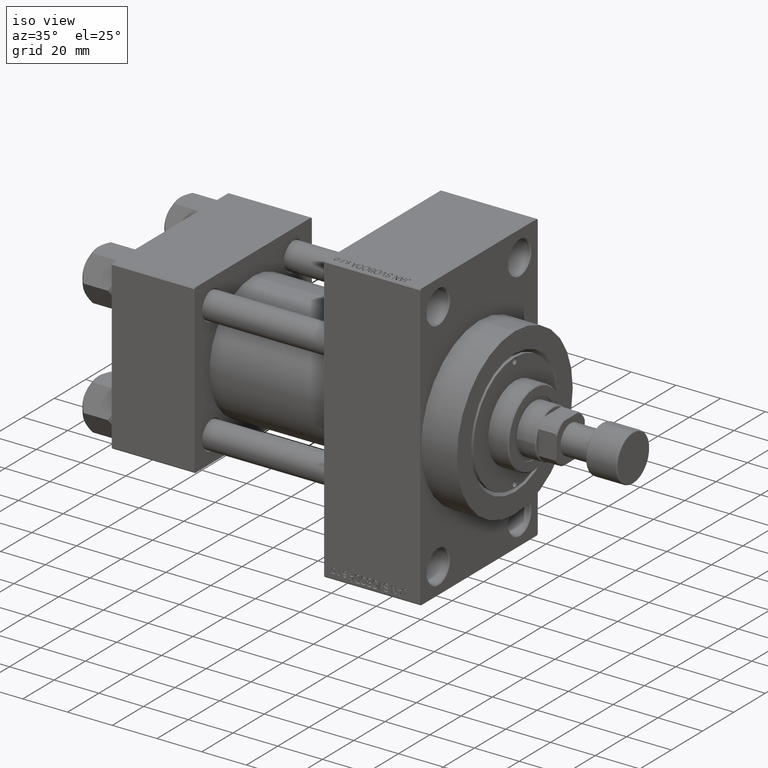
[diagram: clean part render]
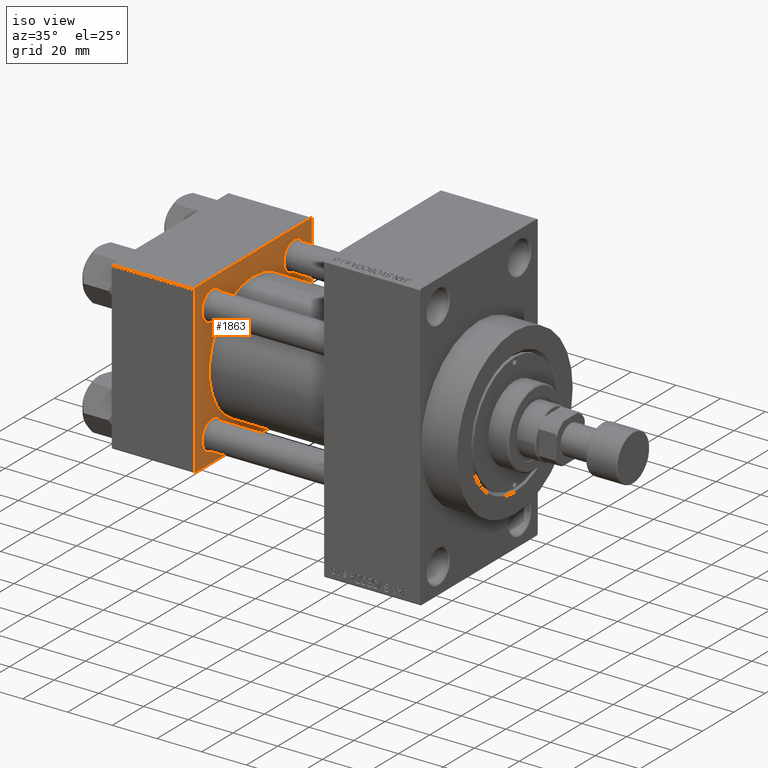
[diagram: same view with one face highlighted and labeled with its STEP entity id]
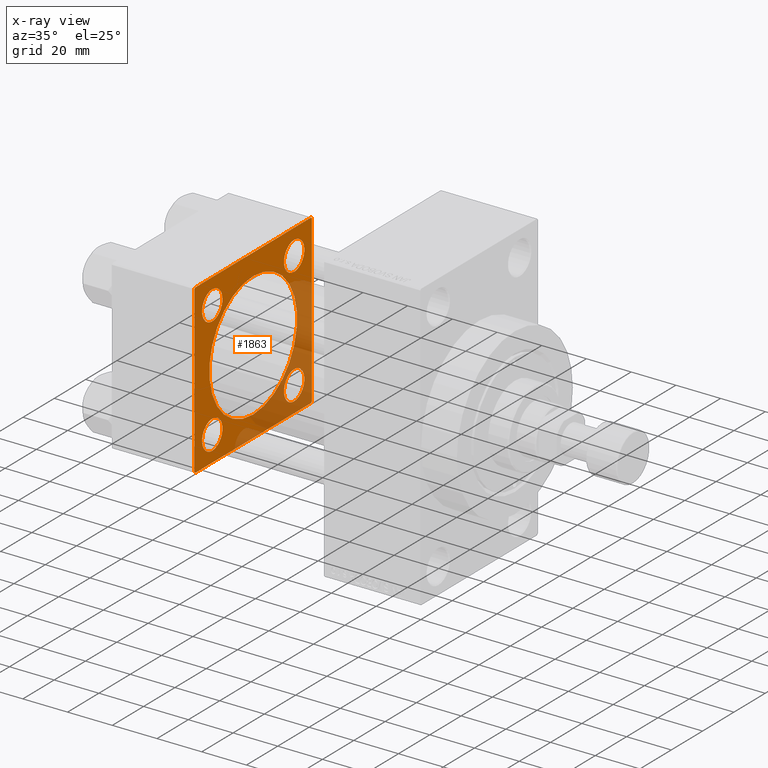
[diagram: x-ray of the same camera — body ghosted, the highlighted face saturated]
A machine part, iso view. The second image highlights one B-rep face of the part: STEP entity #1863.
The next image is the same camera in x-ray: the body ghosted, the highlighted face saturated — about 32% of this face is hidden behind the body in this view.
In plain terms, the highlighted planar face has unit normal (-1, 0, 0).
Its self-contained STEP definition (entity closure, byte-faithful):
#30 = CARTESIAN_POINT ( 'NONE',  ( 37.00000000000000000, 36.99999999999999289, 37.50000000000000000 ) ) ;
#198 = VERTEX_POINT ( 'NONE', #13302 ) ;
#378 = EDGE_LOOP ( 'NONE', ( #18790, #35655, #4514, #42537, #27833, #1516, #10789, #2093 ) ) ;
#387 = LINE ( 'NONE', #7619, #15980 ) ;
#909 = CARTESIAN_POINT ( 'NONE',  ( 37.00000000000000000, 26.14999999999999858, 26.15000000000000213 ) ) ;
#1403 = CIRCLE ( 'NONE', #12979, 6.500000000000002665 ) ;
#1516 = ORIENTED_EDGE ( 'NONE', *, *, #40677, .T. ) ;
#1804 = DIRECTION ( 'NONE',  ( -1.000000000000000000, 0.000000000000000000, -0.000000000000000000 ) ) ;
#1863 = ADVANCED_FACE ( 'NONE', ( #5729, #5967, #39328, #25033, #46346, #43185 ), #20701, .F. ) ;
#1921 = CARTESIAN_POINT ( 'NONE',  ( 37.00000000000000000, 26.14999999999999858, 26.15000000000000213 ) ) ;
#2093 = ORIENTED_EDGE ( 'NONE', *, *, #33304, .T. ) ;
#2189 = CARTESIAN_POINT ( 'NONE',  ( 37.00000000000000000, 36.99999999999999289, 37.50000000000000000 ) ) ;
#2550 = AXIS2_PLACEMENT_3D ( 'NONE', #24797, #27729, #17553 ) ;
#2777 = CARTESIAN_POINT ( 'NONE',  ( 37.00000000000000000, -26.14999999999999147, -32.65000000000006963 ) ) ;
#2973 = VECTOR ( 'NONE', #23329, 1000.000000000000000 ) ;
#3533 = CIRCLE ( 'NONE', #22046, 6.500000000000057732 ) ;
#4311 = CARTESIAN_POINT ( 'NONE',  ( 37.00000000000000000, -37.50000000000000711, 36.99999999999999289 ) ) ;
#4514 = ORIENTED_EDGE ( 'NONE', *, *, #5445, .F. ) ;
#4571 = CIRCLE ( 'NONE', #43156, 28.00000000000000000 ) ;
#4658 = DIRECTION ( 'NONE',  ( 0.000000000000000000, 0.000000000000000000, 1.000000000000000000 ) ) ;
#5445 = EDGE_CURVE ( 'NONE', #29761, #40387, #20784, .T. ) ;
#5479 = LINE ( 'NONE', #41280, #44927 ) ;
#5492 = CIRCLE ( 'NONE', #18584, 6.500000000000002665 ) ;
#5616 = DIRECTION ( 'NONE',  ( -1.000000000000000000, 0.000000000000000000, -0.000000000000000000 ) ) ;
#5729 = FACE_BOUND ( 'NONE', #41592, .T. ) ;
#5967 = FACE_BOUND ( 'NONE', #24633, .T. ) ;
#6185 = CARTESIAN_POINT ( 'NONE',  ( 37.00000000000000000, 37.49999999999999289, -37.50000000000000000 ) ) ;
#6567 = VERTEX_POINT ( 'NONE', #39177 ) ;
#6815 = DIRECTION ( 'NONE',  ( 0.000000000000000000, 0.000000000000000000, 1.000000000000000000 ) ) ;
#7180 = VERTEX_POINT ( 'NONE', #30 ) ;
#7619 = CARTESIAN_POINT ( 'NONE',  ( 37.00000000000000000, 37.49999999999999289, -36.99999999999998579 ) ) ;
#7769 = AXIS2_PLACEMENT_3D ( 'NONE', #33622, #29983, #40160 ) ;
#8143 = CIRCLE ( 'NONE', #25917, 6.500000000000064837 ) ;
#8754 = VECTOR ( 'NONE', #34830, 1000.000000000000000 ) ;
#8810 = VECTOR ( 'NONE', #35075, 1000.000000000000114 ) ;
#8987 = VERTEX_POINT ( 'NONE', #4311 ) ;
#9300 = VERTEX_POINT ( 'NONE', #19722 ) ;
#9521 = CARTESIAN_POINT ( 'NONE',  ( 37.00000000000000000, 26.14999999999999858, -26.15000000000000213 ) ) ;
#10444 = DIRECTION ( 'NONE',  ( -0.000000000000000000, -0.7071067811865474617, -0.7071067811865474617 ) ) ;
#10789 = ORIENTED_EDGE ( 'NONE', *, *, #18067, .T. ) ;
#11006 = ORIENTED_EDGE ( 'NONE', *, *, #30498, .T. ) ;
#11157 = CIRCLE ( 'NONE', #37416, 6.500000000000057732 ) ;
#11580 = ORIENTED_EDGE ( 'NONE', *, *, #43418, .T. ) ;
#12565 = LINE ( 'NONE', #2189, #8810 ) ;
#12792 = CARTESIAN_POINT ( 'NONE',  ( 37.00000000000000000, -37.50000000000000711, 37.49999999999999289 ) ) ;
#12880 = VECTOR ( 'NONE', #39392, 1000.000000000000000 ) ;
#12979 = AXIS2_PLACEMENT_3D ( 'NONE', #34636, #19156, #4658 ) ;
#13302 = CARTESIAN_POINT ( 'NONE',  ( 37.00000000000000000, -2.602085213965210642E-15, 28.00000000000000000 ) ) ;
#13500 = CARTESIAN_POINT ( 'NONE',  ( 37.00000000000000000, 37.49999999999999289, 37.00000000000000000 ) ) ;
#14351 = EDGE_CURVE ( 'NONE', #35337, #9300, #39107, .T. ) ;
#14508 = DIRECTION ( 'NONE',  ( 0.000000000000000000, 0.000000000000000000, 1.000000000000000000 ) ) ;
#14753 = DIRECTION ( 'NONE',  ( 0.000000000000000000, 0.000000000000000000, 1.000000000000000000 ) ) ;
#14990 = ORIENTED_EDGE ( 'NONE', *, *, #39951, .T. ) ;
#15188 = EDGE_CURVE ( 'NONE', #35055, #40387, #387, .T. ) ;
#15591 = LINE ( 'NONE', #26728, #2973 ) ;
#15867 = DIRECTION ( 'NONE',  ( -1.000000000000000000, 0.000000000000000000, -0.000000000000000000 ) ) ;
#15980 = VECTOR ( 'NONE', #18288, 1000.000000000000114 ) ;
#16624 = ORIENTED_EDGE ( 'NONE', *, *, #14351, .T. ) ;
#16734 = CARTESIAN_POINT ( 'NONE',  ( 37.00000000000000000, -26.14999999999999147, 26.15000000000000924 ) ) ;
#17553 = DIRECTION ( 'NONE',  ( -0.000000000000000000, 0.000000000000000000, 1.000000000000000000 ) ) ;
#18067 = EDGE_CURVE ( 'NONE', #8987, #46939, #27558, .T. ) ;
#18288 = DIRECTION ( 'NONE',  ( -0.000000000000000000, 0.7071067811865474617, 0.7071067811865474617 ) ) ;
#18383 = DIRECTION ( 'NONE',  ( -1.000000000000000000, 0.000000000000000000, -0.000000000000000000 ) ) ;
#18550 = DIRECTION ( 'NONE',  ( 0.000000000000000000, 0.000000000000000000, 1.000000000000000000 ) ) ;
#18567 = VERTEX_POINT ( 'NONE', #45112 ) ;
#18584 = AXIS2_PLACEMENT_3D ( 'NONE', #909, #45160, #18550 ) ;
#18754 = ORIENTED_EDGE ( 'NONE', *, *, #43346, .T. ) ;
#18790 = ORIENTED_EDGE ( 'NONE', *, *, #47060, .F. ) ;
#18999 = DIRECTION ( 'NONE',  ( 0.000000000000000000, 0.000000000000000000, 1.000000000000000000 ) ) ;
#19156 = DIRECTION ( 'NONE',  ( -1.000000000000000000, 0.000000000000000000, -0.000000000000000000 ) ) ;
#19249 = CARTESIAN_POINT ( 'NONE',  ( 37.00000000000000000, -37.00000000000000711, 37.49999999999999289 ) ) ;
#19722 = CARTESIAN_POINT ( 'NONE',  ( 37.00000000000000000, -26.14999999999999147, 19.64999999999994529 ) ) ;
#20206 = LINE ( 'NONE', #6185, #42855 ) ;
#20387 = AXIS2_PLACEMENT_3D ( 'NONE', #9521, #1804, #20404 ) ;
#20404 = DIRECTION ( 'NONE',  ( 0.000000000000000000, 0.000000000000000000, 1.000000000000000000 ) ) ;
#20701 = PLANE ( 'NONE',  #2550 ) ;
#20742 = ORIENTED_EDGE ( 'NONE', *, *, #21153, .T. ) ;
#20784 = LINE ( 'NONE', #46896, #8754 ) ;
#20921 = DIRECTION ( 'NONE',  ( 0.000000000000000000, -1.000000000000000000, -9.251858538542972814E-17 ) ) ;
#21153 = EDGE_CURVE ( 'NONE', #45925, #6567, #1403, .T. ) ;
#21747 = EDGE_CURVE ( 'NONE', #7180, #36516, #15591, .T. ) ;
#22046 = AXIS2_PLACEMENT_3D ( 'NONE', #25632, #18383, #14508 ) ;
#23248 = EDGE_CURVE ( 'NONE', #198, #39894, #4571, .T. ) ;
#23329 = DIRECTION ( 'NONE',  ( 0.000000000000000000, -1.000000000000000000, -9.251858538542971581E-17 ) ) ;
#23676 = CARTESIAN_POINT ( 'NONE',  ( 37.00000000000000000, 36.99999999999997868, -37.50000000000000000 ) ) ;
#24633 = EDGE_LOOP ( 'NONE', ( #20742, #25520 ) ) ;
#24797 = CARTESIAN_POINT ( 'NONE',  ( 37.00000000000000000, 0.000000000000000000, 0.000000000000000000 ) ) ;
#25033 = FACE_BOUND ( 'NONE', #30733, .T. ) ;
#25202 = LINE ( 'NONE', #43580, #35787 ) ;
#25520 = ORIENTED_EDGE ( 'NONE', *, *, #42229, .T. ) ;
#25525 = CIRCLE ( 'NONE', #33229, 6.500000000000002665 ) ;
#25632 = CARTESIAN_POINT ( 'NONE',  ( 37.00000000000000000, -26.14999999999999147, -26.15000000000000924 ) ) ;
#25895 = VERTEX_POINT ( 'NONE', #26965 ) ;
#25917 = AXIS2_PLACEMENT_3D ( 'NONE', #16734, #5616, #32192 ) ;
#25991 = EDGE_LOOP ( 'NONE', ( #18754, #16624 ) ) ;
#26728 = CARTESIAN_POINT ( 'NONE',  ( 37.00000000000000000, 37.49999999999999289, 37.50000000000000000 ) ) ;
#26777 = AXIS2_PLACEMENT_3D ( 'NONE', #44867, #15867, #18999 ) ;
#26965 = CARTESIAN_POINT ( 'NONE',  ( 37.00000000000000000, 26.14999999999999858, 32.65000000000001279 ) ) ;
#27544 = DIRECTION ( 'NONE',  ( 0.000000000000000000, 0.000000000000000000, 1.000000000000000000 ) ) ;
#27558 = LINE ( 'NONE', #12792, #12880 ) ;
#27662 = CARTESIAN_POINT ( 'NONE',  ( 37.00000000000000000, -37.00000000000002132, -37.50000000000000711 ) ) ;
#27729 = DIRECTION ( 'NONE',  ( -1.000000000000000000, 0.000000000000000000, -0.000000000000000000 ) ) ;
#27833 = ORIENTED_EDGE ( 'NONE', *, *, #21747, .T. ) ;
#28186 = CARTESIAN_POINT ( 'NONE',  ( 37.00000000000000000, -37.50000000000000000, -37.00000000000003553 ) ) ;
#28369 = VERTEX_POINT ( 'NONE', #31048 ) ;
#28634 = CIRCLE ( 'NONE', #7769, 28.00000000000000000 ) ;
#29761 = VERTEX_POINT ( 'NONE', #13500 ) ;
#29983 = DIRECTION ( 'NONE',  ( 1.000000000000000000, -0.000000000000000000, 0.000000000000000000 ) ) ;
#30498 = EDGE_CURVE ( 'NONE', #28369, #25895, #25525, .T. ) ;
#30733 = EDGE_LOOP ( 'NONE', ( #11006, #46565 ) ) ;
#31048 = CARTESIAN_POINT ( 'NONE',  ( 37.00000000000000000, 26.14999999999999858, 19.64999999999999858 ) ) ;
#31404 = EDGE_CURVE ( 'NONE', #25895, #28369, #5492, .T. ) ;
#31420 = DIRECTION ( 'NONE',  ( -1.000000000000000000, 0.000000000000000000, -0.000000000000000000 ) ) ;
#32177 = ORIENTED_EDGE ( 'NONE', *, *, #23248, .F. ) ;
#32192 = DIRECTION ( 'NONE',  ( 0.000000000000000000, 0.000000000000000000, 1.000000000000000000 ) ) ;
#32310 = EDGE_CURVE ( 'NONE', #39894, #198, #28634, .T. ) ;
#33229 = AXIS2_PLACEMENT_3D ( 'NONE', #1921, #31420, #27544 ) ;
#33304 = EDGE_CURVE ( 'NONE', #46939, #33714, #5479, .T. ) ;
#33622 = CARTESIAN_POINT ( 'NONE',  ( 37.00000000000000000, -2.602085213965210642E-15, 0.000000000000000000 ) ) ;
#33714 = VERTEX_POINT ( 'NONE', #27662 ) ;
#34270 = DIRECTION ( 'NONE',  ( 0.000000000000000000, 0.7071067811865524577, -0.7071067811865426878 ) ) ;
#34636 = CARTESIAN_POINT ( 'NONE',  ( 37.00000000000000000, 26.14999999999999858, -26.15000000000000213 ) ) ;
#34830 = DIRECTION ( 'NONE',  ( 0.000000000000000000, 0.000000000000000000, -1.000000000000000000 ) ) ;
#35055 = VERTEX_POINT ( 'NONE', #23676 ) ;
#35075 = DIRECTION ( 'NONE',  ( 0.000000000000000000, -0.7071067811865474617, 0.7071067811865474617 ) ) ;
#35337 = VERTEX_POINT ( 'NONE', #46355 ) ;
#35655 = ORIENTED_EDGE ( 'NONE', *, *, #15188, .T. ) ;
#35787 = VECTOR ( 'NONE', #10444, 1000.000000000000114 ) ;
#36516 = VERTEX_POINT ( 'NONE', #19249 ) ;
#37014 = DIRECTION ( 'NONE',  ( 1.000000000000000000, -0.000000000000000000, 0.000000000000000000 ) ) ;
#37274 = DIRECTION ( 'NONE',  ( -1.000000000000000000, 0.000000000000000000, -0.000000000000000000 ) ) ;
#37416 = AXIS2_PLACEMENT_3D ( 'NONE', #40656, #37274, #6815 ) ;
#37888 = CARTESIAN_POINT ( 'NONE',  ( 37.00000000000000000, 26.14999999999999858, -32.65000000000000568 ) ) ;
#38723 = EDGE_LOOP ( 'NONE', ( #32177, #40937 ) ) ;
#39107 = CIRCLE ( 'NONE', #26777, 6.500000000000064837 ) ;
#39177 = CARTESIAN_POINT ( 'NONE',  ( 37.00000000000000000, 26.14999999999999858, -19.65000000000000213 ) ) ;
#39328 = FACE_BOUND ( 'NONE', #25991, .T. ) ;
#39392 = DIRECTION ( 'NONE',  ( 0.000000000000000000, 9.251858538542971581E-17, -1.000000000000000000 ) ) ;
#39894 = VERTEX_POINT ( 'NONE', #46498 ) ;
#39951 = EDGE_CURVE ( 'NONE', #45243, #18567, #11157, .T. ) ;
#40160 = DIRECTION ( 'NONE',  ( 0.000000000000000000, 0.000000000000000000, 1.000000000000000000 ) ) ;
#40239 = CARTESIAN_POINT ( 'NONE',  ( 37.00000000000000000, 37.49999999999999289, -36.99999999999998579 ) ) ;
#40387 = VERTEX_POINT ( 'NONE', #40239 ) ;
#40656 = CARTESIAN_POINT ( 'NONE',  ( 37.00000000000000000, -26.14999999999999147, -26.15000000000000924 ) ) ;
#40677 = EDGE_CURVE ( 'NONE', #36516, #8987, #25202, .T. ) ;
#40937 = ORIENTED_EDGE ( 'NONE', *, *, #32310, .F. ) ;
#41280 = CARTESIAN_POINT ( 'NONE',  ( 37.00000000000000000, -37.00000000000002132, -37.50000000000000711 ) ) ;
#41592 = EDGE_LOOP ( 'NONE', ( #14990, #11580 ) ) ;
#42229 = EDGE_CURVE ( 'NONE', #6567, #45925, #46623, .T. ) ;
#42537 = ORIENTED_EDGE ( 'NONE', *, *, #44721, .T. ) ;
#42855 = VECTOR ( 'NONE', #20921, 1000.000000000000000 ) ;
#43156 = AXIS2_PLACEMENT_3D ( 'NONE', #47667, #37014, #14753 ) ;
#43185 = FACE_OUTER_BOUND ( 'NONE', #378, .T. ) ;
#43346 = EDGE_CURVE ( 'NONE', #9300, #35337, #8143, .T. ) ;
#43418 = EDGE_CURVE ( 'NONE', #18567, #45243, #3533, .T. ) ;
#43580 = CARTESIAN_POINT ( 'NONE',  ( 37.00000000000000000, -37.50000000000000711, 36.99999999999999289 ) ) ;
#44721 = EDGE_CURVE ( 'NONE', #29761, #7180, #12565, .T. ) ;
#44867 = CARTESIAN_POINT ( 'NONE',  ( 37.00000000000000000, -26.14999999999999147, 26.15000000000000924 ) ) ;
#44927 = VECTOR ( 'NONE', #34270, 1000.000000000000000 ) ;
#45112 = CARTESIAN_POINT ( 'NONE',  ( 37.00000000000000000, -26.14999999999999147, -19.64999999999995239 ) ) ;
#45160 = DIRECTION ( 'NONE',  ( -1.000000000000000000, 0.000000000000000000, -0.000000000000000000 ) ) ;
#45243 = VERTEX_POINT ( 'NONE', #2777 ) ;
#45925 = VERTEX_POINT ( 'NONE', #37888 ) ;
#46346 = FACE_BOUND ( 'NONE', #38723, .T. ) ;
#46355 = CARTESIAN_POINT ( 'NONE',  ( 37.00000000000000000, -26.14999999999999147, 32.65000000000007674 ) ) ;
#46498 = CARTESIAN_POINT ( 'NONE',  ( 37.00000000000000000, 8.269258236473776482E-16, -28.00000000000000000 ) ) ;
#46565 = ORIENTED_EDGE ( 'NONE', *, *, #31404, .T. ) ;
#46623 = CIRCLE ( 'NONE', #20387, 6.500000000000002665 ) ;
#46896 = CARTESIAN_POINT ( 'NONE',  ( 37.00000000000000000, 37.49999999999999289, 37.50000000000000000 ) ) ;
#46939 = VERTEX_POINT ( 'NONE', #28186 ) ;
#47060 = EDGE_CURVE ( 'NONE', #35055, #33714, #20206, .T. ) ;
#47667 = CARTESIAN_POINT ( 'NONE',  ( 37.00000000000000000, -2.602085213965210642E-15, 0.000000000000000000 ) ) ;